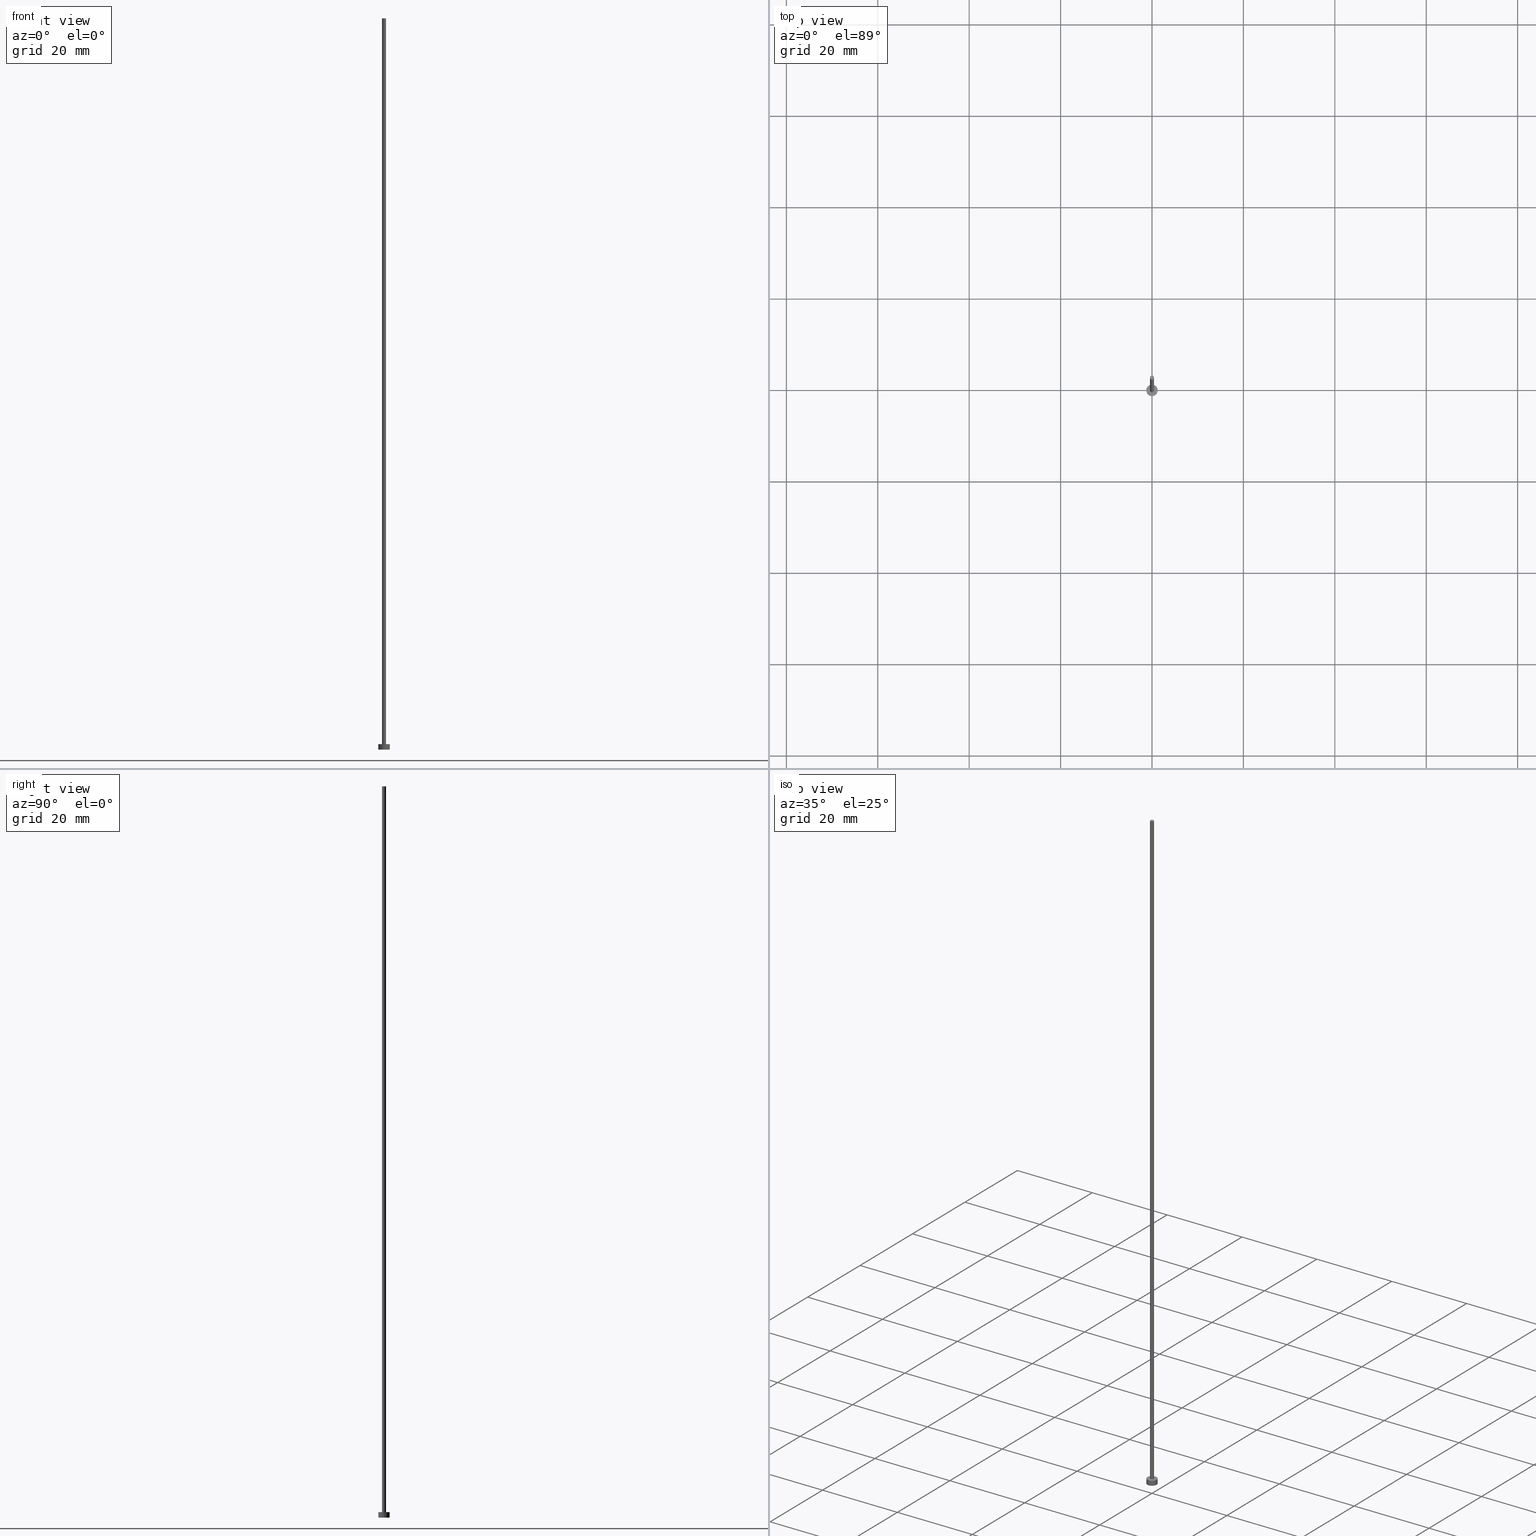
[diagram: canonical four-view strip — front | top / right | iso, engineering-drawing reading convention]
A machine part, canonical four-view strip (front | top / right | iso — engineering-drawing reading convention). The complete STEP part file that produces these views, byte-faithful:
ISO-10303-21;
HEADER;
FILE_DESCRIPTION (( 'STEP AP203' ),
    '1' );
FILE_NAME ('803c.STEP',
    '2026-02-06T12:43:56',
    ( '' ),
    ( '' ),
    'SwSTEP 2.0',
    'SolidWorks 2019',
    '' );
FILE_SCHEMA (( 'CONFIG_CONTROL_DESIGN' ));
ENDSEC;

DATA;
#1 = LOCAL_TIME ( 13, 43, 56.00000000000000000, #204 ) ;
#2 = ADVANCED_FACE ( 'NONE', ( #77, #219 ), #11, .T. ) ;
#3 = ORIENTED_EDGE ( 'NONE', *, *, #46, .F. ) ;
#4 =( GEOMETRIC_REPRESENTATION_CONTEXT ( 3 ) GLOBAL_UNCERTAINTY_ASSIGNED_CONTEXT ( ( #162 ) ) GLOBAL_UNIT_ASSIGNED_CONTEXT ( ( #55, #93, #246 ) ) REPRESENTATION_CONTEXT ( 'NONE', 'WORKASPACE' ) );
#5 = SECURITY_CLASSIFICATION_LEVEL ( 'unclassified' ) ;
#6 = ORIENTED_EDGE ( 'NONE', *, *, #167, .T. ) ;
#7 = CIRCLE ( 'NONE', #124, 0.4500000000000000111 ) ;
#8 = CLOSED_SHELL ( 'NONE', ( #30, #69, #151, #2, #210, #120, #131 ) ) ;
#9 = CARTESIAN_POINT ( 'NONE',  ( 1.250000000000000000, 1.530808498934191571E-16, 1.199999999999999956 ) ) ;
#10 = COORDINATED_UNIVERSAL_TIME_OFFSET ( 1, 0, .AHEAD. ) ;
#11 = PLANE ( 'NONE',  #247 ) ;
#12 = EDGE_CURVE ( 'NONE', #202, #29, #207, .T. ) ;
#13 = VERTEX_POINT ( 'NONE', #9 ) ;
#14 = VECTOR ( 'NONE', #18, 1000.000000000000000 ) ;
#15 = VERTEX_POINT ( 'NONE', #26 ) ;
#16 = CARTESIAN_POINT ( 'NONE',  ( -0.4500000000000000111, 0.000000000000000000, 1.199999999999999956 ) ) ;
#17 = CARTESIAN_POINT ( 'NONE',  ( -0.4500000000000000111, 0.000000000000000000, 160.0000000000000284 ) ) ;
#18 = DIRECTION ( 'NONE',  ( -0.000000000000000000, -0.000000000000000000, -1.000000000000000000 ) ) ;
#19 = PERSON_AND_ORGANIZATION ( #254, #166 ) ;
#20 = CARTESIAN_POINT ( 'NONE',  ( 0.000000000000000000, 0.000000000000000000, 160.0000000000000284 ) ) ;
#21 = CARTESIAN_POINT ( 'NONE',  ( 0.4500000000000000111, 5.510910596163088939E-17, 160.0000000000000284 ) ) ;
#22 = CALENDAR_DATE ( 2026, 6, 2 ) ;
#23 = AXIS2_PLACEMENT_3D ( 'NONE', #47, #129, #103 ) ;
#24 = PERSON_AND_ORGANIZATION_ROLE ( 'design_supplier' ) ;
#25 = VECTOR ( 'NONE', #157, 1000.000000000000000 ) ;
#26 = CARTESIAN_POINT ( 'NONE',  ( -1.250000000000000000, 0.000000000000000000, 1.199999999999999956 ) ) ;
#27 = ORIENTED_EDGE ( 'NONE', *, *, #200, .T. ) ;
#28 = DIRECTION ( 'NONE',  ( 1.000000000000000000, 0.000000000000000000, 0.000000000000000000 ) ) ;
#29 = VERTEX_POINT ( 'NONE', #150 ) ;
#30 = ADVANCED_FACE ( 'NONE', ( #175 ), #222, .T. ) ;
#31 = ORIENTED_EDGE ( 'NONE', *, *, #118, .T. ) ;
#32 = CARTESIAN_POINT ( 'NONE',  ( 0.000000000000000000, 0.000000000000000000, 0.000000000000000000 ) ) ;
#33 = DIRECTION ( 'NONE',  ( 0.000000000000000000, 0.000000000000000000, 1.000000000000000000 ) ) ;
#34 = CYLINDRICAL_SURFACE ( 'NONE', #42, 1.250000000000000000 ) ;
#35 = LOCAL_TIME ( 13, 43, 56.00000000000000000, #10 ) ;
#36 = CIRCLE ( 'NONE', #95, 1.250000000000000000 ) ;
#37 = EDGE_LOOP ( 'NONE', ( #182, #86, #241, #122 ) ) ;
#38 = AXIS2_PLACEMENT_3D ( 'NONE', #252, #248, #143 ) ;
#39 = ORIENTED_EDGE ( 'NONE', *, *, #164, .T. ) ;
#40 = CC_DESIGN_APPROVAL ( #181, ( #79 ) ) ;
#41 = CIRCLE ( 'NONE', #158, 1.250000000000000000 ) ;
#42 = AXIS2_PLACEMENT_3D ( 'NONE', #163, #255, #195 ) ;
#43 = DIRECTION ( 'NONE',  ( 0.000000000000000000, 0.000000000000000000, 1.000000000000000000 ) ) ;
#44 = APPROVAL_PERSON_ORGANIZATION ( #64, #181, #251 ) ;
#45 = CALENDAR_DATE ( 2026, 6, 2 ) ;
#46 = EDGE_CURVE ( 'NONE', #144, #177, #176, .T. ) ;
#47 = CARTESIAN_POINT ( 'NONE',  ( 0.000000000000000000, 0.000000000000000000, 160.0000000000000284 ) ) ;
#48 = CIRCLE ( 'NONE', #235, 1.250000000000000000 ) ;
#49 = APPROVAL_ROLE ( '' ) ;
#50 = CC_DESIGN_DATE_AND_TIME_ASSIGNMENT ( #180, #234, ( #79 ) ) ;
#51 = PRODUCT ( '803c', '803c', '', ( #114 ) ) ;
#52 = CC_DESIGN_APPROVAL ( #89, ( #142 ) ) ;
#53 = DIRECTION ( 'NONE',  ( 1.000000000000000000, 0.000000000000000000, 0.000000000000000000 ) ) ;
#54 = EDGE_LOOP ( 'NONE', ( #156, #85 ) ) ;
#55 =( LENGTH_UNIT ( ) NAMED_UNIT ( * ) SI_UNIT ( .MILLI., .METRE. ) );
#56 = AXIS2_PLACEMENT_3D ( 'NONE', #137, #33, #112 ) ;
#57 = DIRECTION ( 'NONE',  ( -0.000000000000000000, -0.000000000000000000, -1.000000000000000000 ) ) ;
#58 = AXIS2_PLACEMENT_3D ( 'NONE', #152, #245, #28 ) ;
#59 = DIRECTION ( 'NONE',  ( 1.000000000000000000, 0.000000000000000000, 0.000000000000000000 ) ) ;
#60 = DESIGN_CONTEXT ( 'detailed design', #123, 'design' ) ;
#61 = DATE_AND_TIME ( #179, #149 ) ;
#62 = COORDINATED_UNIVERSAL_TIME_OFFSET ( 1, 0, .AHEAD. ) ;
#63 = CC_DESIGN_APPROVAL ( #71, ( #191 ) ) ;
#64 = PERSON_AND_ORGANIZATION ( #254, #166 ) ;
#65 = ORIENTED_EDGE ( 'NONE', *, *, #236, .T. ) ;
#66 = APPROVAL_DATE_TIME ( #186, #89 ) ;
#67 = VECTOR ( 'NONE', #57, 1000.000000000000000 ) ;
#68 = DATE_AND_TIME ( #45, #35 ) ;
#69 = ADVANCED_FACE ( 'NONE', ( #104 ), #113, .T. ) ;
#70 = ORIENTED_EDGE ( 'NONE', *, *, #164, .F. ) ;
#71 = APPROVAL ( #147, 'NEUR�EN�' ) ;
#72 = EDGE_LOOP ( 'NONE', ( #107, #227 ) ) ;
#73 = ORIENTED_EDGE ( 'NONE', *, *, #205, .F. ) ;
#74 = FACE_OUTER_BOUND ( 'NONE', #37, .T. ) ;
#75 = PLANE ( 'NONE',  #56 ) ;
#76 = ORIENTED_EDGE ( 'NONE', *, *, #108, .F. ) ;
#77 = FACE_BOUND ( 'NONE', #54, .T. ) ;
#78 = DIRECTION ( 'NONE',  ( 0.000000000000000000, 0.000000000000000000, 1.000000000000000000 ) ) ;
#79 = PRODUCT_DEFINITION ( 'NEZN�M�', '', #142, #60 ) ;
#80 = LOCAL_TIME ( 13, 43, 56.00000000000000000, #62 ) ;
#81 = LINE ( 'NONE', #17, #14 ) ;
#82 = FACE_OUTER_BOUND ( 'NONE', #215, .T. ) ;
#83 = LINE ( 'NONE', #21, #67 ) ;
#84 = EDGE_CURVE ( 'NONE', #177, #170, #83, .T. ) ;
#85 = ORIENTED_EDGE ( 'NONE', *, *, #236, .F. ) ;
#86 = ORIENTED_EDGE ( 'NONE', *, *, #192, .F. ) ;
#87 = EDGE_LOOP ( 'NONE', ( #223, #174 ) ) ;
#88 = APPROVAL_STATUS ( 'not_yet_approved' ) ;
#89 = APPROVAL ( #88, 'NEUR�EN�' ) ;
#90 = CARTESIAN_POINT ( 'NONE',  ( 0.000000000000000000, 0.000000000000000000, 1.199999999999999956 ) ) ;
#91 = EDGE_LOOP ( 'NONE', ( #239, #3, #39, #6 ) ) ;
#92 = AXIS2_PLACEMENT_3D ( 'NONE', #32, #109, #140 ) ;
#93 =( NAMED_UNIT ( * ) PLANE_ANGLE_UNIT ( ) SI_UNIT ( $, .RADIAN. ) );
#94 = DIRECTION ( 'NONE',  ( 1.000000000000000000, 0.000000000000000000, -0.000000000000000000 ) ) ;
#95 = AXIS2_PLACEMENT_3D ( 'NONE', #139, #233, #187 ) ;
#96 = CC_DESIGN_PERSON_AND_ORGANIZATION_ASSIGNMENT ( #116, #253, ( #79 ) ) ;
#97 = CARTESIAN_POINT ( 'NONE',  ( 0.000000000000000000, 0.000000000000000000, 160.0000000000000284 ) ) ;
#98 = CARTESIAN_POINT ( 'NONE',  ( 0.4500000000000000111, 5.510910596163088939E-17, 160.0000000000000284 ) ) ;
#99 = PERSON_AND_ORGANIZATION_ROLE ( 'design_owner' ) ;
#100 = CARTESIAN_POINT ( 'NONE',  ( 0.4500000000000000111, 5.510910596163088939E-17, 1.199999999999999956 ) ) ;
#101 = APPROVAL_PERSON_ORGANIZATION ( #240, #89, #49 ) ;
#102 = APPROVAL_DATE_TIME ( #221, #71 ) ;
#103 = DIRECTION ( 'NONE',  ( -1.000000000000000000, 0.000000000000000000, 0.000000000000000000 ) ) ;
#104 = FACE_OUTER_BOUND ( 'NONE', #189, .T. ) ;
#105 = PRODUCT_DEFINITION_SHAPE ( 'NONE', 'NONE',  #79 ) ;
#106 = DIRECTION ( 'NONE',  ( -0.000000000000000000, -0.000000000000000000, -1.000000000000000000 ) ) ;
#107 = ORIENTED_EDGE ( 'NONE', *, *, #12, .F. ) ;
#108 = EDGE_CURVE ( 'NONE', #177, #144, #203, .T. ) ;
#109 = DIRECTION ( 'NONE',  ( 0.000000000000000000, 0.000000000000000000, 1.000000000000000000 ) ) ;
#110 = CC_DESIGN_DATE_AND_TIME_ASSIGNMENT ( #68, #242, ( #191 ) ) ;
#111 = DIRECTION ( 'NONE',  ( -0.000000000000000000, -0.000000000000000000, -1.000000000000000000 ) ) ;
#112 = DIRECTION ( 'NONE',  ( 1.000000000000000000, 0.000000000000000000, -0.000000000000000000 ) ) ;
#113 = CYLINDRICAL_SURFACE ( 'NONE', #38, 1.250000000000000000 ) ;
#114 = MECHANICAL_CONTEXT ( 'NONE', #130, 'mechanical' ) ;
#115 = LINE ( 'NONE', #160, #126 ) ;
#116 = PERSON_AND_ORGANIZATION ( #254, #166 ) ;
#117 = DIRECTION ( 'NONE',  ( 0.000000000000000000, 0.000000000000000000, 1.000000000000000000 ) ) ;
#118 = EDGE_CURVE ( 'NONE', #13, #29, #115, .T. ) ;
#119 = ORIENTED_EDGE ( 'NONE', *, *, #250, .F. ) ;
#120 = ADVANCED_FACE ( 'NONE', ( #211 ), #134, .T. ) ;
#121 = PRODUCT_RELATED_PRODUCT_CATEGORY ( 'detail', '', ( #51 ) ) ;
#122 = ORIENTED_EDGE ( 'NONE', *, *, #12, .T. ) ;
#123 = APPLICATION_CONTEXT ( 'configuration controlled 3d designs of mechanical parts and assemblies' ) ;
#124 = AXIS2_PLACEMENT_3D ( 'NONE', #196, #117, #197 ) ;
#125 = AXIS2_PLACEMENT_3D ( 'NONE', #20, #106, #193 ) ;
#126 = VECTOR ( 'NONE', #111, 1000.000000000000000 ) ;
#127 = PERSON_AND_ORGANIZATION ( #254, #166 ) ;
#128 = DIRECTION ( 'NONE',  ( 0.000000000000000000, 0.000000000000000000, 1.000000000000000000 ) ) ;
#129 = DIRECTION ( 'NONE',  ( -0.000000000000000000, -0.000000000000000000, -1.000000000000000000 ) ) ;
#130 = APPLICATION_CONTEXT ( 'configuration controlled 3d designs of mechanical parts and assemblies' ) ;
#131 = ADVANCED_FACE ( 'NONE', ( #82 ), #208, .T. ) ;
#132 = CC_DESIGN_PERSON_AND_ORGANIZATION_ASSIGNMENT ( #19, #99, ( #51 ) ) ;
#133 = CARTESIAN_POINT ( 'NONE',  ( 0.000000000000000000, 0.000000000000000000, 0.000000000000000000 ) ) ;
#134 = CYLINDRICAL_SURFACE ( 'NONE', #125, 0.4500000000000000111 ) ;
#135 = CARTESIAN_POINT ( 'NONE',  ( -1.250000000000000000, 0.000000000000000000, 1.199999999999999956 ) ) ;
#136 = APPROVAL_PERSON_ORGANIZATION ( #127, #71, #148 ) ;
#137 = CARTESIAN_POINT ( 'NONE',  ( 0.000000000000000000, 0.000000000000000000, 0.000000000000000000 ) ) ;
#138 = DIRECTION ( 'NONE',  ( 1.000000000000000000, 0.000000000000000000, 0.000000000000000000 ) ) ;
#139 = CARTESIAN_POINT ( 'NONE',  ( 0.000000000000000000, 0.000000000000000000, 0.000000000000000000 ) ) ;
#140 = DIRECTION ( 'NONE',  ( 1.000000000000000000, 0.000000000000000000, 0.000000000000000000 ) ) ;
#141 = CARTESIAN_POINT ( 'NONE',  ( -0.4500000000000000111, 0.000000000000000000, 160.0000000000000284 ) ) ;
#142 = PRODUCT_DEFINITION_FORMATION_WITH_SPECIFIED_SOURCE ( 'LIBOVOLN�', '', #51, .NOT_KNOWN. ) ;
#143 = DIRECTION ( 'NONE',  ( -1.000000000000000000, 0.000000000000000000, 0.000000000000000000 ) ) ;
#144 = VERTEX_POINT ( 'NONE', #141 ) ;
#145 = APPROVAL_STATUS ( 'not_yet_approved' ) ;
#146 = PERSON_AND_ORGANIZATION ( #254, #166 ) ;
#147 = APPROVAL_STATUS ( 'not_yet_approved' ) ;
#148 = APPROVAL_ROLE ( '' ) ;
#149 = LOCAL_TIME ( 13, 43, 56.00000000000000000, #178 ) ;
#150 = CARTESIAN_POINT ( 'NONE',  ( 1.250000000000000000, 1.530808498934191571E-16, 0.000000000000000000 ) ) ;
#151 = ADVANCED_FACE ( 'NONE', ( #74 ), #34, .T. ) ;
#152 = CARTESIAN_POINT ( 'NONE',  ( 0.000000000000000000, 0.000000000000000000, 160.0000000000000284 ) ) ;
#153 = LINE ( 'NONE', #135, #25 ) ;
#154 = DIRECTION ( 'NONE',  ( 1.000000000000000000, 0.000000000000000000, -0.000000000000000000 ) ) ;
#155 = CARTESIAN_POINT ( 'NONE',  ( 0.000000000000000000, 0.000000000000000000, 1.199999999999999956 ) ) ;
#156 = ORIENTED_EDGE ( 'NONE', *, *, #167, .F. ) ;
#157 = DIRECTION ( 'NONE',  ( -0.000000000000000000, -0.000000000000000000, -1.000000000000000000 ) ) ;
#158 = AXIS2_PLACEMENT_3D ( 'NONE', #165, #230, #59 ) ;
#159 = FACE_OUTER_BOUND ( 'NONE', #72, .T. ) ;
#160 = CARTESIAN_POINT ( 'NONE',  ( 1.250000000000000000, 1.530808498934191571E-16, 1.199999999999999956 ) ) ;
#161 = DIRECTION ( 'NONE',  ( 0.000000000000000000, 0.000000000000000000, 1.000000000000000000 ) ) ;
#162 = UNCERTAINTY_MEASURE_WITH_UNIT (LENGTH_MEASURE( 1.000000000000000082E-05 ), #55, 'distance_accuracy_value', 'NONE');
#163 = CARTESIAN_POINT ( 'NONE',  ( 0.000000000000000000, 0.000000000000000000, 1.199999999999999956 ) ) ;
#164 = EDGE_CURVE ( 'NONE', #144, #206, #81, .T. ) ;
#165 = CARTESIAN_POINT ( 'NONE',  ( 0.000000000000000000, 0.000000000000000000, 1.199999999999999956 ) ) ;
#166 = ORGANIZATION ( 'NEUR�EN�', 'NEUR�EN�', '' ) ;
#167 = EDGE_CURVE ( 'NONE', #206, #170, #7, .T. ) ;
#168 = CALENDAR_DATE ( 2026, 6, 2 ) ;
#169 = AXIS2_PLACEMENT_3D ( 'NONE', #155, #226, #53 ) ;
#170 = VERTEX_POINT ( 'NONE', #100 ) ;
#171 = PERSON_AND_ORGANIZATION_ROLE ( 'classification_officer' ) ;
#172 = COORDINATED_UNIVERSAL_TIME_OFFSET ( 1, 0, .AHEAD. ) ;
#173 = CIRCLE ( 'NONE', #169, 0.4500000000000000111 ) ;
#174 = ORIENTED_EDGE ( 'NONE', *, *, #205, .T. ) ;
#175 = FACE_OUTER_BOUND ( 'NONE', #190, .T. ) ;
#176 = CIRCLE ( 'NONE', #58, 0.4500000000000000111 ) ;
#177 = VERTEX_POINT ( 'NONE', #98 ) ;
#178 = COORDINATED_UNIVERSAL_TIME_OFFSET ( 1, 0, .AHEAD. ) ;
#179 = CALENDAR_DATE ( 2026, 6, 2 ) ;
#180 = DATE_AND_TIME ( #22, #80 ) ;
#181 = APPROVAL ( #145, 'NEUR�EN�' ) ;
#182 = ORIENTED_EDGE ( 'NONE', *, *, #118, .F. ) ;
#183 = MANIFOLD_SOLID_BREP ( 'P�idat vysunut�m3', #8 ) ;
#184 = PERSON_AND_ORGANIZATION_ROLE ( 'creator' ) ;
#185 = SHAPE_DEFINITION_REPRESENTATION ( #105, #199 ) ;
#186 = DATE_AND_TIME ( #168, #216 ) ;
#187 = DIRECTION ( 'NONE',  ( 1.000000000000000000, 0.000000000000000000, 0.000000000000000000 ) ) ;
#188 = DIRECTION ( 'NONE',  ( 1.000000000000000000, 0.000000000000000000, 0.000000000000000000 ) ) ;
#189 = EDGE_LOOP ( 'NONE', ( #73, #31, #27, #119 ) ) ;
#190 = EDGE_LOOP ( 'NONE', ( #76, #214, #65, #70 ) ) ;
#191 = SECURITY_CLASSIFICATION ( '', '', #5 ) ;
#192 = EDGE_CURVE ( 'NONE', #15, #13, #41, .T. ) ;
#193 = DIRECTION ( 'NONE',  ( -1.000000000000000000, 0.000000000000000000, 0.000000000000000000 ) ) ;
#194 = CC_DESIGN_PERSON_AND_ORGANIZATION_ASSIGNMENT ( #217, #24, ( #142 ) ) ;
#195 = DIRECTION ( 'NONE',  ( -1.000000000000000000, 0.000000000000000000, 0.000000000000000000 ) ) ;
#196 = CARTESIAN_POINT ( 'NONE',  ( 0.000000000000000000, 0.000000000000000000, 1.199999999999999956 ) ) ;
#197 = DIRECTION ( 'NONE',  ( 1.000000000000000000, 0.000000000000000000, 0.000000000000000000 ) ) ;
#198 = APPROVAL_DATE_TIME ( #61, #181 ) ;
#199 = ADVANCED_BREP_SHAPE_REPRESENTATION ( '803c', ( #183, #92 ), #4 ) ;
#200 = EDGE_CURVE ( 'NONE', #29, #202, #36, .T. ) ;
#201 = ORIENTED_EDGE ( 'NONE', *, *, #108, .T. ) ;
#202 = VERTEX_POINT ( 'NONE', #232 ) ;
#203 = CIRCLE ( 'NONE', #231, 0.4500000000000000111 ) ;
#204 = COORDINATED_UNIVERSAL_TIME_OFFSET ( 1, 0, .AHEAD. ) ;
#205 = EDGE_CURVE ( 'NONE', #13, #15, #48, .T. ) ;
#206 = VERTEX_POINT ( 'NONE', #16 ) ;
#207 = CIRCLE ( 'NONE', #238, 1.250000000000000000 ) ;
#208 = PLANE ( 'NONE',  #209 ) ;
#209 = AXIS2_PLACEMENT_3D ( 'NONE', #212, #161, #154 ) ;
#210 = ADVANCED_FACE ( 'NONE', ( #159 ), #75, .F. ) ;
#211 = FACE_OUTER_BOUND ( 'NONE', #91, .T. ) ;
#212 = CARTESIAN_POINT ( 'NONE',  ( 0.000000000000000000, 0.000000000000000000, 160.0000000000000284 ) ) ;
#213 = DIRECTION ( 'NONE',  ( 0.000000000000000000, 0.000000000000000000, 1.000000000000000000 ) ) ;
#214 = ORIENTED_EDGE ( 'NONE', *, *, #84, .T. ) ;
#215 = EDGE_LOOP ( 'NONE', ( #249, #201 ) ) ;
#216 = LOCAL_TIME ( 13, 43, 56.00000000000000000, #172 ) ;
#217 = PERSON_AND_ORGANIZATION ( #254, #166 ) ;
#218 = CALENDAR_DATE ( 2026, 6, 2 ) ;
#219 = FACE_OUTER_BOUND ( 'NONE', #87, .T. ) ;
#220 = CC_DESIGN_PERSON_AND_ORGANIZATION_ASSIGNMENT ( #146, #184, ( #142 ) ) ;
#221 = DATE_AND_TIME ( #218, #1 ) ;
#222 = CYLINDRICAL_SURFACE ( 'NONE', #23, 0.4500000000000000111 ) ;
#223 = ORIENTED_EDGE ( 'NONE', *, *, #192, .T. ) ;
#224 = APPLICATION_PROTOCOL_DEFINITION ( 'international standard', 'config_control_design', 1994, #130 ) ;
#225 = CC_DESIGN_SECURITY_CLASSIFICATION ( #191, ( #142 ) ) ;
#226 = DIRECTION ( 'NONE',  ( 0.000000000000000000, 0.000000000000000000, 1.000000000000000000 ) ) ;
#227 = ORIENTED_EDGE ( 'NONE', *, *, #200, .F. ) ;
#228 = CC_DESIGN_PERSON_AND_ORGANIZATION_ASSIGNMENT ( #243, #171, ( #191 ) ) ;
#229 = CARTESIAN_POINT ( 'NONE',  ( 0.000000000000000000, 0.000000000000000000, 1.199999999999999956 ) ) ;
#230 = DIRECTION ( 'NONE',  ( 0.000000000000000000, 0.000000000000000000, 1.000000000000000000 ) ) ;
#231 = AXIS2_PLACEMENT_3D ( 'NONE', #97, #213, #138 ) ;
#232 = CARTESIAN_POINT ( 'NONE',  ( -1.250000000000000000, 0.000000000000000000, 0.000000000000000000 ) ) ;
#233 = DIRECTION ( 'NONE',  ( 0.000000000000000000, 0.000000000000000000, 1.000000000000000000 ) ) ;
#234 = DATE_TIME_ROLE ( 'creation_date' ) ;
#235 = AXIS2_PLACEMENT_3D ( 'NONE', #229, #78, #188 ) ;
#236 = EDGE_CURVE ( 'NONE', #170, #206, #173, .T. ) ;
#237 = APPLICATION_PROTOCOL_DEFINITION ( 'international standard', 'config_control_design', 1994, #123 ) ;
#238 = AXIS2_PLACEMENT_3D ( 'NONE', #133, #128, #244 ) ;
#239 = ORIENTED_EDGE ( 'NONE', *, *, #84, .F. ) ;
#240 = PERSON_AND_ORGANIZATION ( #254, #166 ) ;
#241 = ORIENTED_EDGE ( 'NONE', *, *, #250, .T. ) ;
#242 = DATE_TIME_ROLE ( 'classification_date' ) ;
#243 = PERSON_AND_ORGANIZATION ( #254, #166 ) ;
#244 = DIRECTION ( 'NONE',  ( 1.000000000000000000, 0.000000000000000000, 0.000000000000000000 ) ) ;
#245 = DIRECTION ( 'NONE',  ( 0.000000000000000000, 0.000000000000000000, 1.000000000000000000 ) ) ;
#246 =( NAMED_UNIT ( * ) SI_UNIT ( $, .STERADIAN. ) SOLID_ANGLE_UNIT ( ) );
#247 = AXIS2_PLACEMENT_3D ( 'NONE', #90, #43, #94 ) ;
#248 = DIRECTION ( 'NONE',  ( -0.000000000000000000, -0.000000000000000000, -1.000000000000000000 ) ) ;
#249 = ORIENTED_EDGE ( 'NONE', *, *, #46, .T. ) ;
#250 = EDGE_CURVE ( 'NONE', #15, #202, #153, .T. ) ;
#251 = APPROVAL_ROLE ( '' ) ;
#252 = CARTESIAN_POINT ( 'NONE',  ( 0.000000000000000000, 0.000000000000000000, 1.199999999999999956 ) ) ;
#253 = PERSON_AND_ORGANIZATION_ROLE ( 'creator' ) ;
#254 = PERSON ( 'NEUR�EN�', 'NEUR�EN�', 'NEUR�EN�', ('NEUR�EN�'), ('NEUR�EN�'), ('NEUR�EN�') ) ;
#255 = DIRECTION ( 'NONE',  ( -0.000000000000000000, -0.000000000000000000, -1.000000000000000000 ) ) ;
ENDSEC;
END-ISO-10303-21;
